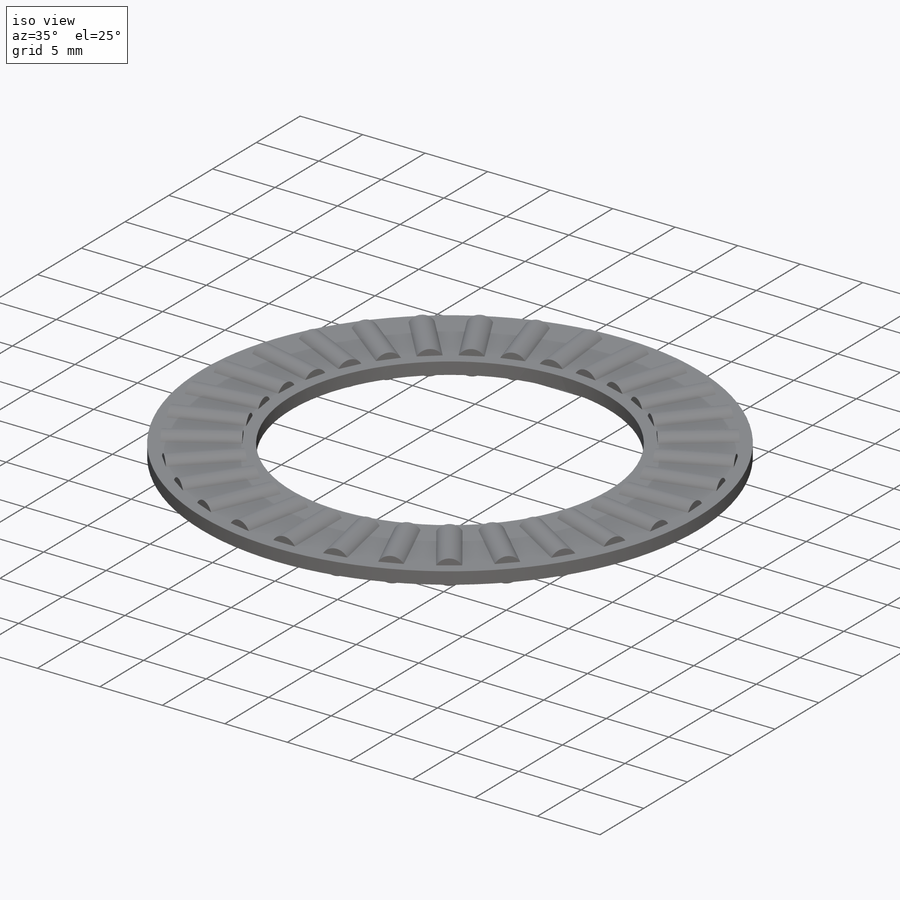
[diagram: iso view]
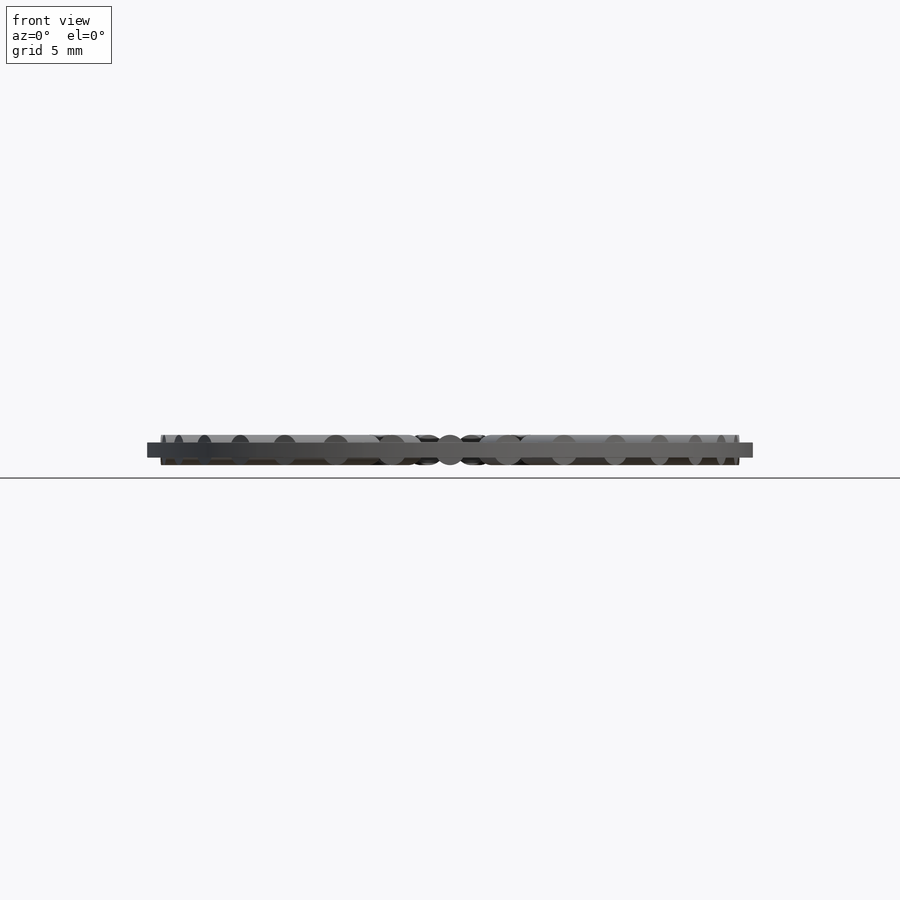
[diagram: front view]
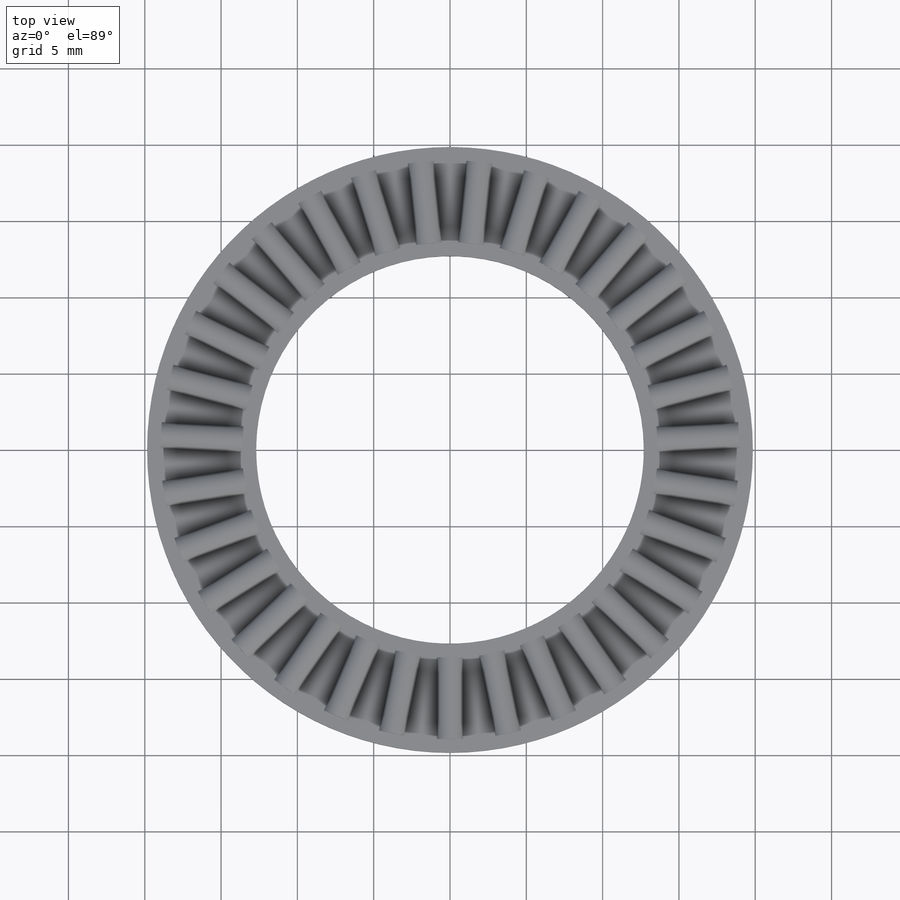
[diagram: top view]
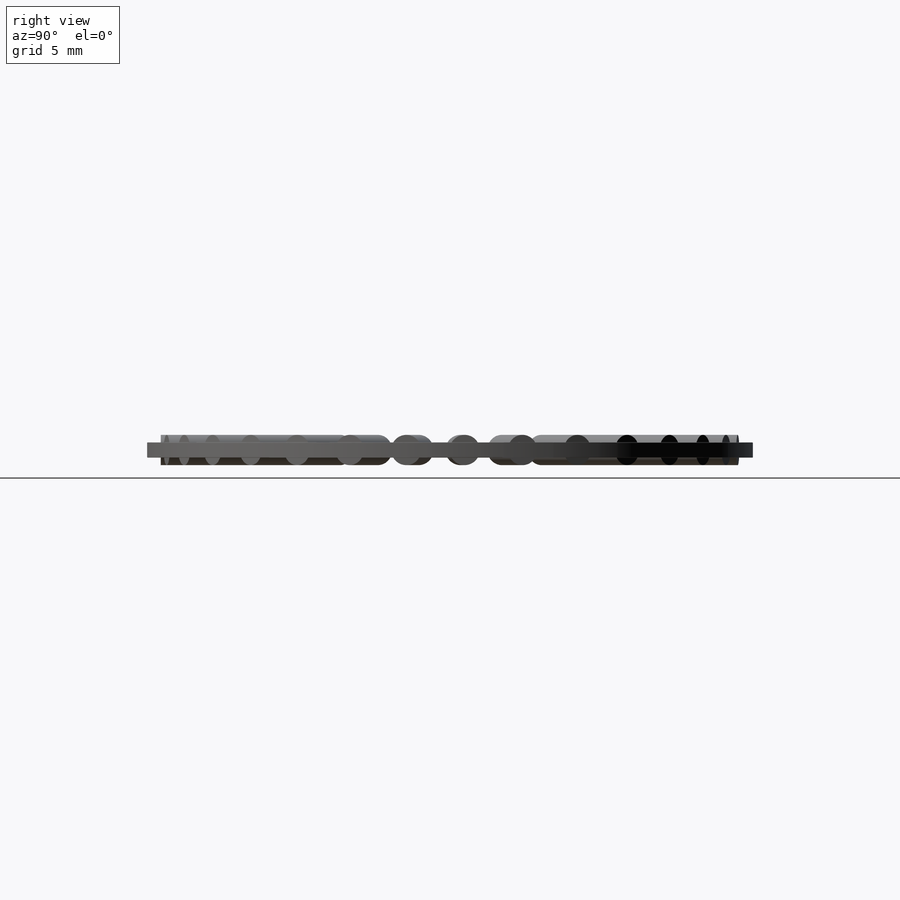
[diagram: right view]
SOLIDWORKS PART (.sldprt)
format: sldprt  version: not decoded by parser v0  size: 593,920 bytes
history: native  units: mm
features: sketch x4, revolve x3, fillet x3, pattern_circular x2, material x1, cut_revolve x1 (+13 scaffold rows collapsed)
feature tree (27):
  scaffold x13  (default folders/planes/origin — collapsed)
  material  "Material <not specified>"
  sketch  "Sketch1"  dims[c1.OD=39.6875mm c1.Shaft Dia=25.4mm c1.Th=~1.984375mm c1.D1=1.0mm c1.D2=~0.992188mm c2.D1=~5.357813mm c2.D3=~7.14375mm]
  revolve  "Revolve1"  Angle=360deg
  sketch  "Sketch3"
  cut_revolve  "Cut-Revolve1"  Angle=360deg
  sketch  "Sketch2"
  revolve  "Revolve2"  Angle=360deg
  pattern_circular  "CirPattern1"  Count=31 Angle=11.612903deg Rollers=31
  pattern_circular  "CirPattern2"  Count=31 Angle=11.612903deg
  sketch  "Sketch4"  dims[Ht=~19.84375mm Washer Th=0.8128mm Washer ID=25.4mm Washer OD=39.6875mm]
  revolve  "Revolve3"  Angle=360deg
  fillet  "Fillet1"  Radius=0.019844mm
  fillet  "Fillet2"  Radius=0.019844mm
  fillet  "Fillet3"  Radius=0.019844mm
decode coverage: 11 of 13 modeling features carry decoded parameters
note: ~ marks probable driven/reference dimensions
note: suppression state not decoded; provenance and decode notes live in map.json
